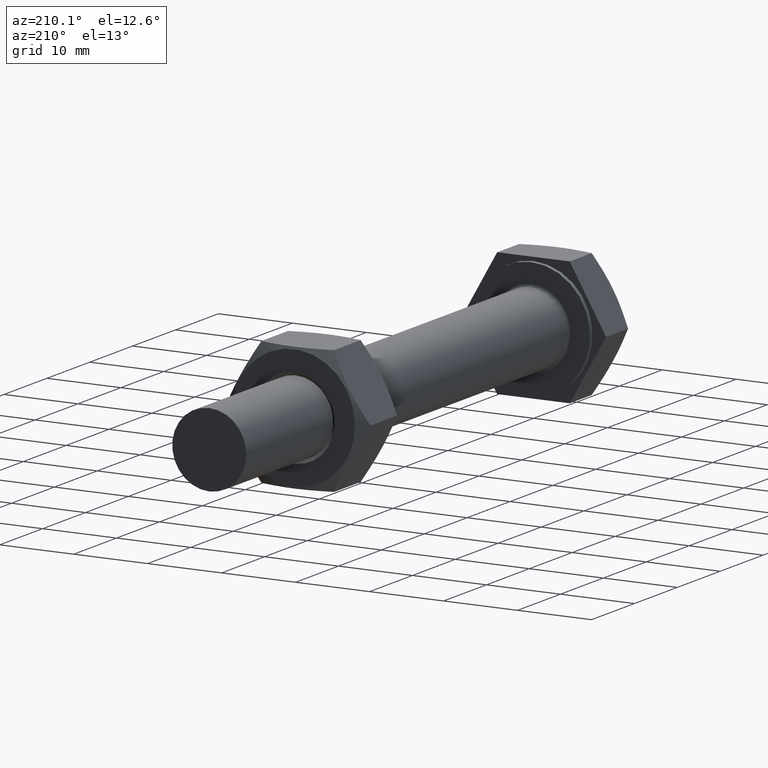
[diagram: clean part render]
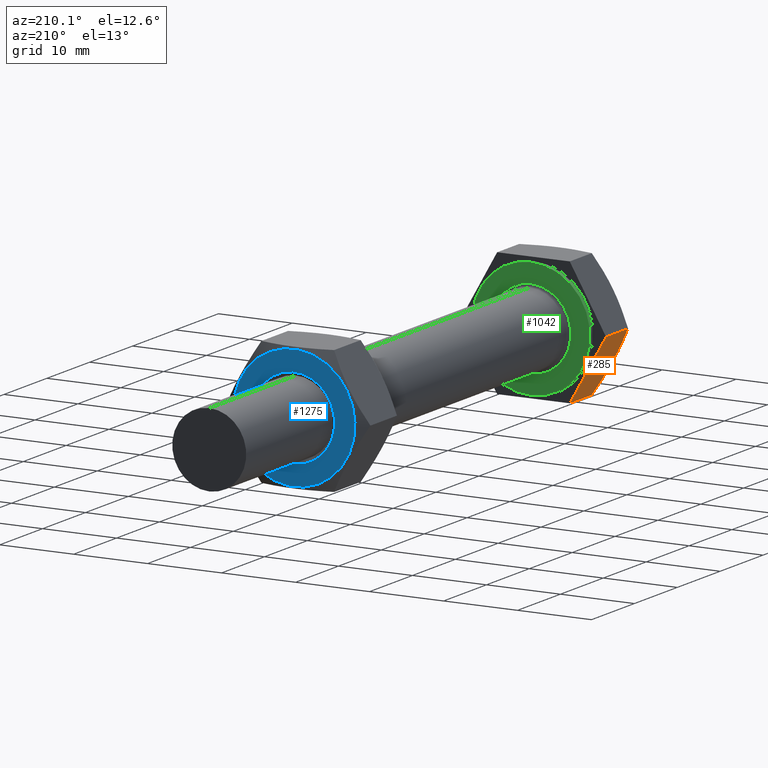
[diagram: same view with three faces highlighted in distinct colors, each labeled with its STEP entity id]
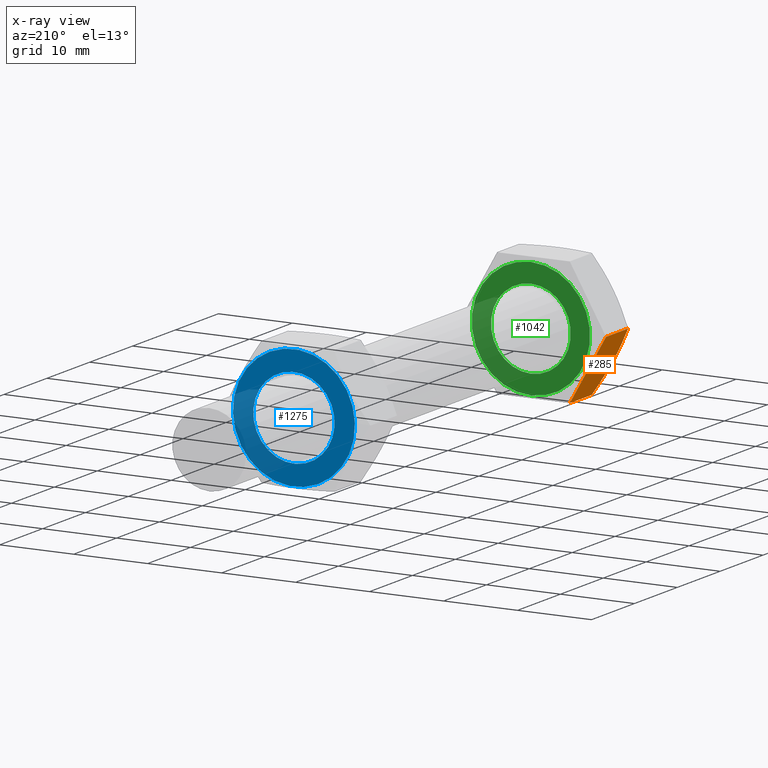
[diagram: x-ray of the same camera — body ghosted, the three highlighted faces saturated]
A machine part, auxiliary view with three faces highlighted in distinct colors.
The next image is the same camera in x-ray (body ghosted, the three faces saturated) — at least one of them is partly hidden behind the body in this view.
Their STEP definitions:

[orange] entity #285 — the highlighted planar face has unit normal (0.866, 0, 0.5).
#101 = PLANE ( 'NONE',  #1008 ) ;
#111 = LINE ( 'NONE', #150, #1222 ) ;
#115 = VERTEX_POINT ( 'NONE', #336 ) ;
#133 = CARTESIAN_POINT ( 'NONE',  ( 6.500000000000000000, 4.907477288111810900, -8.500000000000000000 ) ) ;
#135 = VERTEX_POINT ( 'NONE', #978 ) ;
#150 = CARTESIAN_POINT ( 'NONE',  ( 5.899999999999999500, 4.907477288111810900, -8.500000000000000000 ) ) ;
#161 = EDGE_CURVE ( 'NONE', #135, #115, #1192, .T. ) ;
#166 = CARTESIAN_POINT ( 'NONE',  ( 5.899999999999999500, 9.814954576223648500, 0.0000000000000000000 ) ) ;
#209 = EDGE_CURVE ( 'NONE', #668, #1331, #838, .T. ) ;
#253 = ORIENTED_EDGE ( 'NONE', *, *, #1324, .F. ) ;
#267 = CARTESIAN_POINT ( 'NONE',  ( 0.0000000000000000000, 7.361215932167722200, -4.250000000000011500 ) ) ;
#273 = CARTESIAN_POINT ( 'NONE',  ( 0.07235487420931076300, 8.192108182724622300, -2.810852406420215800 ) ) ;
#285 = ADVANCED_FACE ( 'NONE', ( #805 ), #101, .F. ) ;
#286 = ORIENTED_EDGE ( 'NONE', *, *, #478, .F. ) ;
#336 = CARTESIAN_POINT ( 'NONE',  ( 0.0000000000000000000, 7.361215932167722200, -4.250000000000011500 ) ) ;
#386 = VECTOR ( 'NONE', #643, 1000.000000000000000 ) ;
#466 = CARTESIAN_POINT ( 'NONE',  ( 0.7591893785548422500, 9.814954576223648500, -1.276201025384071400E-016 ) ) ;
#478 = EDGE_CURVE ( 'NONE', #965, #135, #680, .T. ) ;
#518 = DIRECTION ( 'NONE',  ( 0.0000000000000000000, -0.5000000000000013300, -0.8660254037844378200 ) ) ;
#524 = CARTESIAN_POINT ( 'NONE',  ( 6.500000000000000000, 9.814954576223648500, 0.0000000000000000000 ) ) ;
#574 = DIRECTION ( 'NONE',  ( -1.000000000000000000, -0.0000000000000000000, -0.0000000000000000000 ) ) ;
#590 = CARTESIAN_POINT ( 'NONE',  ( 0.3371852653070736000, 5.711611900404635700, -7.107197995384134400 ) ) ;
#594 = B_SPLINE_CURVE_WITH_KNOTS ( 'NONE', 3,
 ( #1249, #1329, #816, #1022, #611, #590, #1091, #1340 ),
 .UNSPECIFIED., .F., .F.,
 ( 4, 2, 2, 4 ),
 ( 0.004965801523355331900, 0.006202551132249075100, 0.007439300741142817500, 0.009912799958930303100 ),
 .UNSPECIFIED. ) ;
#611 = CARTESIAN_POINT ( 'NONE',  ( 0.1388188532161086000, 6.324497102744011600, -6.045649685725203800 ) ) ;
#643 = DIRECTION ( 'NONE',  ( -1.000000000000000000, -0.0000000000000000000, -0.0000000000000000000 ) ) ;
#660 = DIRECTION ( 'NONE',  ( 0.0000000000000000000, -0.8660254037844379300, 0.5000000000000014400 ) ) ;
#668 = VERTEX_POINT ( 'NONE', #892 ) ;
#680 = LINE ( 'NONE', #524, #386 ) ;
#774 = CARTESIAN_POINT ( 'NONE',  ( 6.500000000000000000, 4.907477288111810900, -8.500000000000000000 ) ) ;
#804 = DIRECTION ( 'NONE',  ( -0.0000000000000000000, 0.5000000000000013300, 0.8660254037844379300 ) ) ;
#805 = FACE_OUTER_BOUND ( 'NONE', #1290, .T. ) ;
#816 = CARTESIAN_POINT ( 'NONE',  ( 0.01794440691119914300, 6.943800297183732300, -4.972985087665907000 ) ) ;
#826 = ORIENTED_EDGE ( 'NONE', *, *, #209, .T. ) ;
#838 = LINE ( 'NONE', #133, #1181 ) ;
#892 = CARTESIAN_POINT ( 'NONE',  ( 5.899999999999999500, 4.907477288111810900, -8.500000000000000000 ) ) ;
#900 = EDGE_CURVE ( 'NONE', #115, #1331, #594, .T. ) ;
#965 = VERTEX_POINT ( 'NONE', #166 ) ;
#978 = CARTESIAN_POINT ( 'NONE',  ( 0.7591893785548422500, 9.814954576223648500, -1.276201025384071400E-016 ) ) ;
#1008 = AXIS2_PLACEMENT_3D ( 'NONE', #774, #660, #518 ) ;
#1022 = CARTESIAN_POINT ( 'NONE',  ( 0.08738721373139041200, 6.530008857602910100, -5.689692884756953900 ) ) ;
#1091 = CARTESIAN_POINT ( 'NONE',  ( 0.5280200486215974600, 5.307874312707458100, -7.806492010200936500 ) ) ;
#1098 = CARTESIAN_POINT ( 'NONE',  ( 0.5274414006618694000, 9.413555303962406000, -0.6952439336776414800 ) ) ;
#1103 = ORIENTED_EDGE ( 'NONE', *, *, #900, .F. ) ;
#1117 = CARTESIAN_POINT ( 'NONE',  ( -5.465056575684745800E-015, 7.779260501667375000, -3.525925565798361000 ) ) ;
#1128 = CARTESIAN_POINT ( 'NONE',  ( 0.7591893785548347000, 4.907477288111810900, -8.500000000000000000 ) ) ;
#1181 = VECTOR ( 'NONE', #574, 1000.000000000000000 ) ;
#1192 = B_SPLINE_CURVE_WITH_KNOTS ( 'NONE', 3,
 ( #466, #1098, #1208, #273, #1117, #267 ),
 .UNSPECIFIED., .F., .F.,
 ( 4, 2, 4 ),
 ( 2.380731279450034500E-007, 0.002483019798241638500, 0.004965801523355331900 ),
 .UNSPECIFIED. ) ;
#1208 = CARTESIAN_POINT ( 'NONE',  ( 0.3365154526767530900, 9.009223989627404400, -1.395566313196968200 ) ) ;
#1222 = VECTOR ( 'NONE', #804, 999.9999999999998900 ) ;
#1249 = CARTESIAN_POINT ( 'NONE',  ( 0.0000000000000000000, 7.361215932167722200, -4.250000000000011500 ) ) ;
#1290 = EDGE_LOOP ( 'NONE', ( #253, #826, #1103, #1393, #286 ) ) ;
#1324 = EDGE_CURVE ( 'NONE', #668, #965, #111, .T. ) ;
#1329 = CARTESIAN_POINT ( 'NONE',  ( -5.587876353036617800E-015, 7.152975130087076700, -4.610683649412583100 ) ) ;
#1331 = VERTEX_POINT ( 'NONE', #1128 ) ;
#1340 = CARTESIAN_POINT ( 'NONE',  ( 0.7591893785548347000, 4.907477288111810900, -8.500000000000000000 ) ) ;
#1393 = ORIENTED_EDGE ( 'NONE', *, *, #161, .F. ) ;

[blue] entity #1275 — the highlighted planar face has unit normal (0, 1, 0).
#4 = EDGE_CURVE ( 'NONE', #662, #1294, #221, .T. ) ;
#26 = EDGE_CURVE ( 'NONE', #564, #1054, #1339, .T. ) ;
#39 = PLANE ( 'NONE',  #217 ) ;
#129 = ORIENTED_EDGE ( 'NONE', *, *, #26, .F. ) ;
#131 = CARTESIAN_POINT ( 'NONE',  ( 8.250000000000000000, 8.000000000000037300, 0.0000000000000000000 ) ) ;
#217 = AXIS2_PLACEMENT_3D ( 'NONE', #373, #592, #1342 ) ;
#221 = CIRCLE ( 'NONE', #1327, 5.500000000000001800 ) ;
#369 = CARTESIAN_POINT ( 'NONE',  ( 0.0000000000000000000, 8.000000000000000000, 0.0000000000000000000 ) ) ;
#373 = CARTESIAN_POINT ( 'NONE',  ( 0.0000000000000000000, 8.000000000000000000, 0.0000000000000000000 ) ) ;
#377 = CARTESIAN_POINT ( 'NONE',  ( -2.793185071074484600E-014, 8.000000000000007100, 0.0000000000000000000 ) ) ;
#392 = ORIENTED_EDGE ( 'NONE', *, *, #808, .F. ) ;
#433 = FACE_OUTER_BOUND ( 'NONE', #797, .T. ) ;
#449 = AXIS2_PLACEMENT_3D ( 'NONE', #1118, #483, #1223 ) ;
#479 = DIRECTION ( 'NONE',  ( 0.0000000000000000000, -1.000000000000000000, -0.0000000000000000000 ) ) ;
#483 = DIRECTION ( 'NONE',  ( 0.0000000000000000000, -1.000000000000000000, -0.0000000000000000000 ) ) ;
#564 = VERTEX_POINT ( 'NONE', #131 ) ;
#592 = DIRECTION ( 'NONE',  ( -0.0000000000000000000, 1.000000000000000000, 0.0000000000000000000 ) ) ;
#596 = DIRECTION ( 'NONE',  ( 1.000000000000000000, 3.574581708073408700E-015, 0.0000000000000000000 ) ) ;
#622 = AXIS2_PLACEMENT_3D ( 'NONE', #377, #704, #596 ) ;
#662 = VERTEX_POINT ( 'NONE', #1221 ) ;
#704 = DIRECTION ( 'NONE',  ( 3.491481338843133000E-015, -1.000000000000000000, -0.0000000000000000000 ) ) ;
#713 = ORIENTED_EDGE ( 'NONE', *, *, #4, .T. ) ;
#727 = FACE_BOUND ( 'NONE', #841, .T. ) ;
#759 = DIRECTION ( 'NONE',  ( 3.491481338843133000E-015, -1.000000000000000000, -0.0000000000000000000 ) ) ;
#762 = CIRCLE ( 'NONE', #449, 5.500000000000001800 ) ;
#797 = EDGE_LOOP ( 'NONE', ( #129, #392 ) ) ;
#808 = EDGE_CURVE ( 'NONE', #1054, #564, #1259, .T. ) ;
#841 = EDGE_LOOP ( 'NONE', ( #713, #991 ) ) ;
#863 = DIRECTION ( 'NONE',  ( 1.000000000000000000, 3.574581708073408700E-015, 0.0000000000000000000 ) ) ;
#991 = ORIENTED_EDGE ( 'NONE', *, *, #1274, .T. ) ;
#1007 = CARTESIAN_POINT ( 'NONE',  ( 6.735557395310444000E-016, 8.000000000000000000, -5.500000000000001800 ) ) ;
#1054 = VERTEX_POINT ( 'NONE', #1170 ) ;
#1118 = CARTESIAN_POINT ( 'NONE',  ( 0.0000000000000000000, 8.000000000000000000, 0.0000000000000000000 ) ) ;
#1170 = CARTESIAN_POINT ( 'NONE',  ( -8.250000000000055100, 7.999999999999977800, 1.106734394909508500E-015 ) ) ;
#1221 = CARTESIAN_POINT ( 'NONE',  ( 0.0000000000000000000, 8.000000000000000000, 5.500000000000001800 ) ) ;
#1223 = DIRECTION ( 'NONE',  ( 0.0000000000000000000, 0.0000000000000000000, 1.000000000000000000 ) ) ;
#1228 = DIRECTION ( 'NONE',  ( 0.0000000000000000000, 0.0000000000000000000, 1.000000000000000000 ) ) ;
#1259 = CIRCLE ( 'NONE', #622, 8.250000000000028400 ) ;
#1274 = EDGE_CURVE ( 'NONE', #1294, #662, #762, .T. ) ;
#1275 = ADVANCED_FACE ( 'NONE', ( #727, #433 ), #39, .T. ) ;
#1294 = VERTEX_POINT ( 'NONE', #1007 ) ;
#1327 = AXIS2_PLACEMENT_3D ( 'NONE', #369, #479, #1228 ) ;
#1339 = CIRCLE ( 'NONE', #1399, 8.250000000000028400 ) ;
#1342 = DIRECTION ( 'NONE',  ( 0.0000000000000000000, -0.0000000000000000000, 1.000000000000000000 ) ) ;
#1398 = CARTESIAN_POINT ( 'NONE',  ( -2.793185071074484600E-014, 8.000000000000007100, 0.0000000000000000000 ) ) ;
#1399 = AXIS2_PLACEMENT_3D ( 'NONE', #1398, #759, #863 ) ;

[green] entity #1042 — the highlighted planar face has unit normal (0, 1, 0).
#36 = EDGE_CURVE ( 'NONE', #317, #1370, #767, .T. ) ;
#70 = AXIS2_PLACEMENT_3D ( 'NONE', #1072, #431, #1179 ) ;
#75 = CARTESIAN_POINT ( 'NONE',  ( 6.500000000000000000, 0.0000000000000000000, 8.000000000000000000 ) ) ;
#92 = DIRECTION ( 'NONE',  ( -0.0000000000000000000, 0.0000000000000000000, -1.000000000000000000 ) ) ;
#94 = FACE_BOUND ( 'NONE', #1194, .T. ) ;
#100 = ORIENTED_EDGE ( 'NONE', *, *, #1087, .T. ) ;
#170 = CARTESIAN_POINT ( 'NONE',  ( 6.500000000000000000, 6.613092715395707500E-016, 5.400000000000000400 ) ) ;
#311 = DIRECTION ( 'NONE',  ( 1.000000000000000000, 0.0000000000000000000, -0.0000000000000000000 ) ) ;
#317 = VERTEX_POINT ( 'NONE', #739 ) ;
#318 = DIRECTION ( 'NONE',  ( -1.000000000000000000, -0.0000000000000000000, 0.0000000000000000000 ) ) ;
#360 = CIRCLE ( 'NONE', #514, 5.400000000000000400 ) ;
#366 = EDGE_CURVE ( 'NONE', #1139, #565, #983, .T. ) ;
#395 = ORIENTED_EDGE ( 'NONE', *, *, #879, .F. ) ;
#431 = DIRECTION ( 'NONE',  ( -1.000000000000000000, -0.0000000000000000000, 0.0000000000000000000 ) ) ;
#490 = CIRCLE ( 'NONE', #1116, 8.000000000000000000 ) ;
#514 = AXIS2_PLACEMENT_3D ( 'NONE', #961, #318, #1063 ) ;
#521 = CARTESIAN_POINT ( 'NONE',  ( 6.500000000000000000, 9.814954576223648500, -1.850927914596626500E-015 ) ) ;
#565 = VERTEX_POINT ( 'NONE', #75 ) ;
#597 = AXIS2_PLACEMENT_3D ( 'NONE', #521, #311, #92 ) ;
#606 = DIRECTION ( 'NONE',  ( 0.0000000000000000000, 0.0000000000000000000, 1.000000000000000000 ) ) ;
#691 = ORIENTED_EDGE ( 'NONE', *, *, #366, .F. ) ;
#720 = DIRECTION ( 'NONE',  ( -1.000000000000000000, -0.0000000000000000000, -0.0000000000000000000 ) ) ;
#739 = CARTESIAN_POINT ( 'NONE',  ( 6.500000000000000000, 0.0000000000000000000, -5.400000000000000400 ) ) ;
#742 = EDGE_LOOP ( 'NONE', ( #395, #691 ) ) ;
#767 = CIRCLE ( 'NONE', #70, 5.400000000000000400 ) ;
#879 = EDGE_CURVE ( 'NONE', #565, #1139, #490, .T. ) ;
#930 = ORIENTED_EDGE ( 'NONE', *, *, #36, .T. ) ;
#959 = FACE_OUTER_BOUND ( 'NONE', #742, .T. ) ;
#961 = CARTESIAN_POINT ( 'NONE',  ( 6.500000000000000000, 0.0000000000000000000, 0.0000000000000000000 ) ) ;
#966 = CARTESIAN_POINT ( 'NONE',  ( 6.500000000000000000, 9.797174393178825700E-016, -8.000000000000000000 ) ) ;
#983 = CIRCLE ( 'NONE', #1303, 8.000000000000000000 ) ;
#1042 = ADVANCED_FACE ( 'NONE', ( #94, #959 ), #1386, .T. ) ;
#1063 = DIRECTION ( 'NONE',  ( 0.0000000000000000000, 0.0000000000000000000, -1.000000000000000000 ) ) ;
#1072 = CARTESIAN_POINT ( 'NONE',  ( 6.500000000000000000, 0.0000000000000000000, 0.0000000000000000000 ) ) ;
#1087 = EDGE_CURVE ( 'NONE', #1370, #317, #360, .T. ) ;
#1116 = AXIS2_PLACEMENT_3D ( 'NONE', #1319, #720, #606 ) ;
#1139 = VERTEX_POINT ( 'NONE', #966 ) ;
#1179 = DIRECTION ( 'NONE',  ( 0.0000000000000000000, 0.0000000000000000000, -1.000000000000000000 ) ) ;
#1187 = DIRECTION ( 'NONE',  ( 0.0000000000000000000, 0.0000000000000000000, 1.000000000000000000 ) ) ;
#1194 = EDGE_LOOP ( 'NONE', ( #930, #100 ) ) ;
#1197 = DIRECTION ( 'NONE',  ( -1.000000000000000000, -0.0000000000000000000, -0.0000000000000000000 ) ) ;
#1263 = CARTESIAN_POINT ( 'NONE',  ( 6.500000000000000000, 0.0000000000000000000, 0.0000000000000000000 ) ) ;
#1303 = AXIS2_PLACEMENT_3D ( 'NONE', #1263, #1197, #1187 ) ;
#1319 = CARTESIAN_POINT ( 'NONE',  ( 6.500000000000000000, 0.0000000000000000000, 0.0000000000000000000 ) ) ;
#1370 = VERTEX_POINT ( 'NONE', #170 ) ;
#1386 = PLANE ( 'NONE',  #597 ) ;